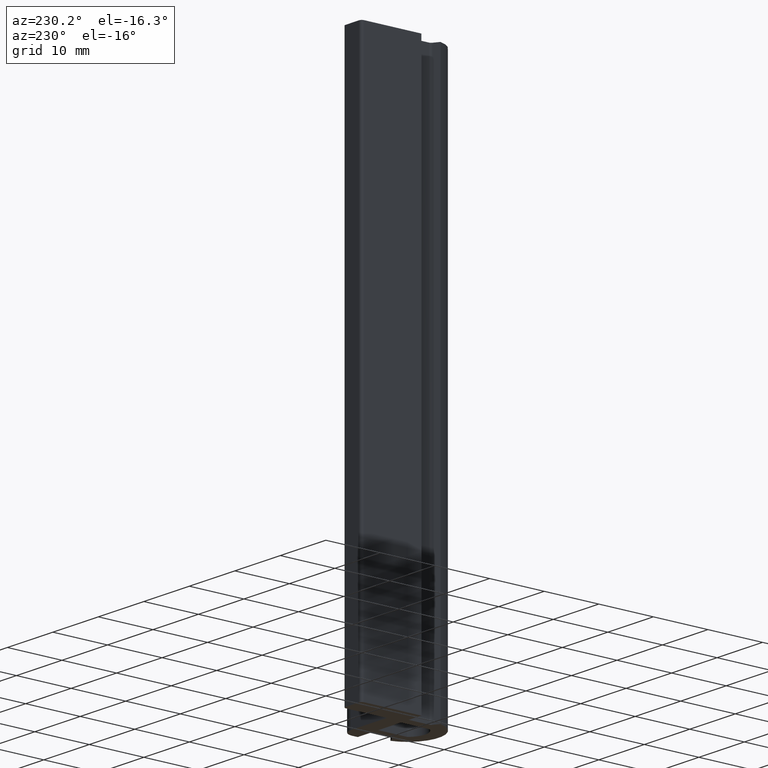
[diagram: clean part render]
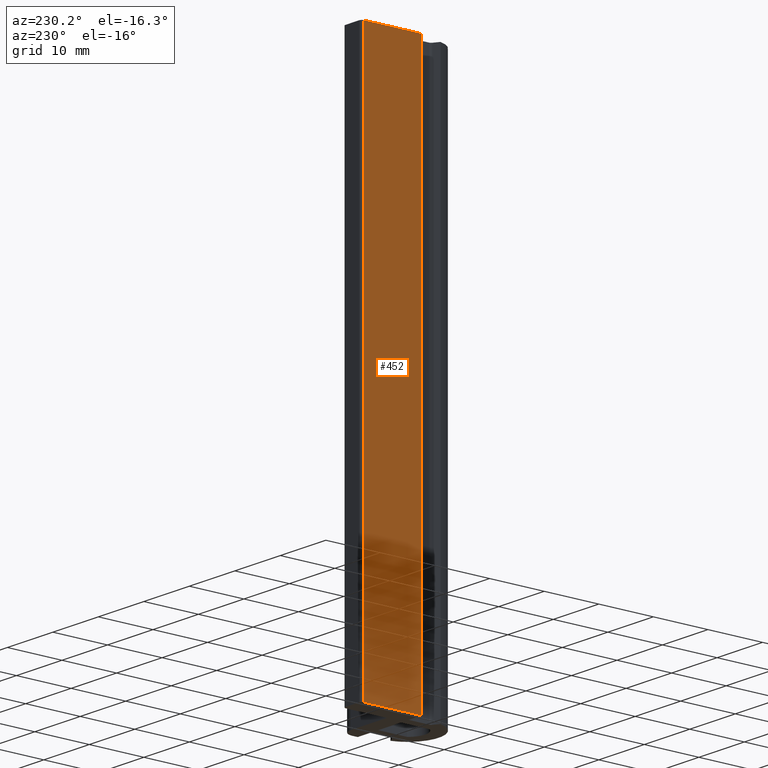
[diagram: same view with one face highlighted and labeled with its STEP entity id]
A machine part, auxiliary view. The second image highlights one B-rep face of the part: STEP entity #452.
In plain terms, the highlighted planar face has unit normal (-1, 0, 0).
Its self-contained STEP definition (entity closure, byte-faithful):
#31=PLANE('',#491);
#54=FACE_OUTER_BOUND('',#78,.T.);
#78=EDGE_LOOP('',(#399,#400,#401,#402));
#92=LINE('',#657,#141);
#101=LINE('',#679,#150);
#128=LINE('',#743,#177);
#129=LINE('',#745,#178);
#141=VECTOR('',#528,100.);
#150=VECTOR('',#545,10.5);
#177=VECTOR('',#612,100.);
#178=VECTOR('',#615,10.5);
#205=VERTEX_POINT('',#650);
#208=VERTEX_POINT('',#655);
#217=VERTEX_POINT('',#677);
#234=VERTEX_POINT('',#741);
#252=EDGE_CURVE('',#208,#205,#92,.T.);
#264=EDGE_CURVE('',#217,#208,#101,.T.);
#296=EDGE_CURVE('',#217,#234,#128,.T.);
#297=EDGE_CURVE('',#205,#234,#129,.T.);
#399=ORIENTED_EDGE('',*,*,#252,.F.);
#400=ORIENTED_EDGE('',*,*,#264,.F.);
#401=ORIENTED_EDGE('',*,*,#296,.T.);
#402=ORIENTED_EDGE('',*,*,#297,.F.);
#452=ADVANCED_FACE('',(#54),#31,.T.);
#491=AXIS2_PLACEMENT_3D('',#744,#613,#614);
#528=DIRECTION('',(0.,0.,1.));
#545=DIRECTION('',(0.,1.,0.));
#612=DIRECTION('',(0.,0.,1.));
#613=DIRECTION('center_axis',(-1.,0.,0.));
#614=DIRECTION('ref_axis',(0.,-1.,0.));
#615=DIRECTION('',(0.,-1.,0.));
#650=CARTESIAN_POINT('',(-7.,10.5,100.));
#655=CARTESIAN_POINT('',(-7.,10.5,0.));
#657=CARTESIAN_POINT('',(-7.,10.5,0.));
#677=CARTESIAN_POINT('',(-7.,0.,0.));
#679=CARTESIAN_POINT('',(-7.,0.,0.));
#741=CARTESIAN_POINT('',(-7.,0.,100.));
#743=CARTESIAN_POINT('',(-7.,0.,0.));
#744=CARTESIAN_POINT('Origin',(-7.,11.,0.));
#745=CARTESIAN_POINT('',(-7.,0.,100.));